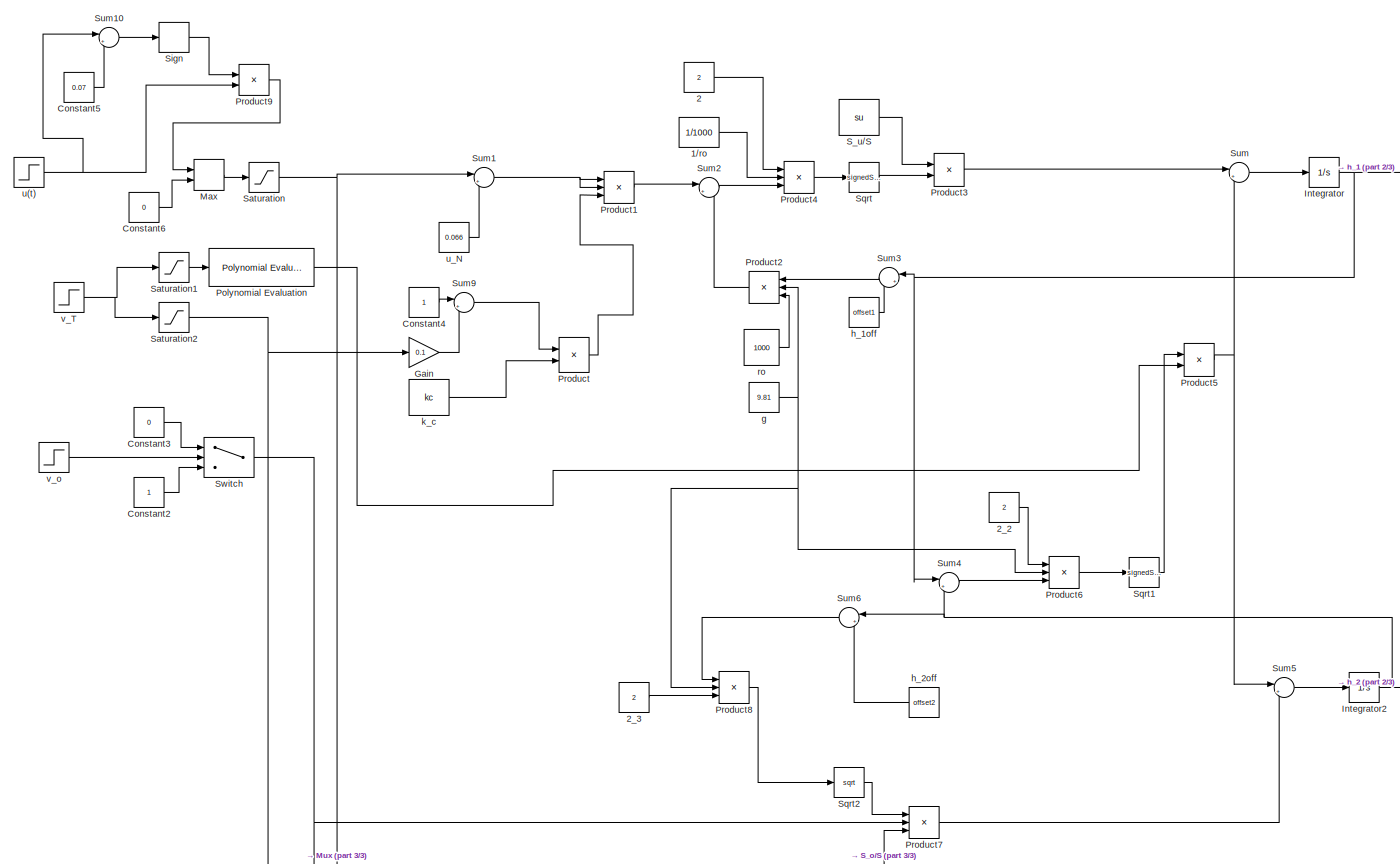
[diagram: root canvas - part 1/3, full width, middle band]
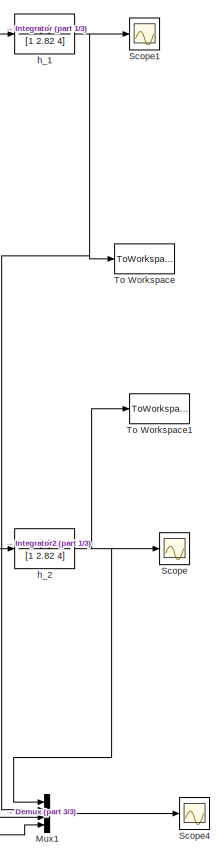
[diagram: root canvas - part 2/3, middle right region]
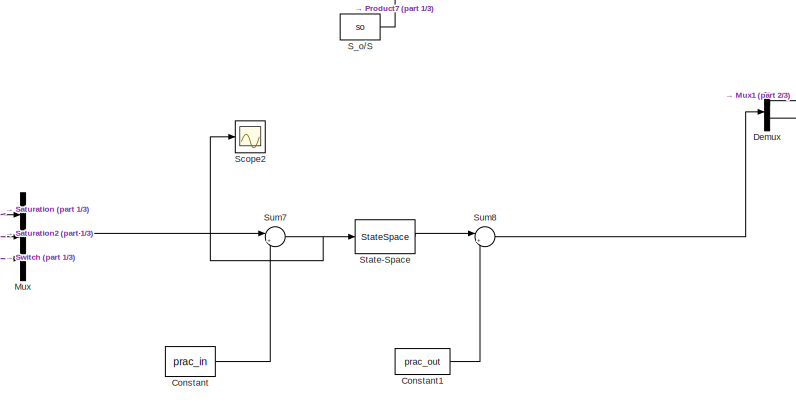
[diagram: root canvas - part 3/3, bottom center region]
MODEL slx_21967d08559a
KIND model
CONFIG AbsTol = auto
CONFIG EnableMultiTasking = off
CONFIG FixedStep = auto
CONFIG MaxStep = auto
CONFIG MinStep = auto
CONFIG RelTol = 1e-3
CONFIG SampleTimeConstraint = Unconstrained
CONFIG Solver = VariableStepAuto
CONFIG SolverName = VariableStepAuto
CONFIG StartTime = 0.0
CONFIG StopTime = 300
BLOCK [Constant] 1//ro 
  Value = 1/1000
BLOCK [Constant] 2 
  Value = 2
BLOCK [Constant] 2_2 
  Value = 2
BLOCK [Constant] 2_3 
  Value = 2
BLOCK [Constant] Constant
  Value = prac_in
BLOCK [Constant] Constant1
  Value = prac_out
BLOCK [Constant] Constant2
BLOCK [Constant] Constant3
  Value = 0
BLOCK [Constant] Constant4
BLOCK [Constant] Constant5
  Value = 0.07
BLOCK [Constant] Constant6
  Value = 0
BLOCK [Demux] Demux
  DisplayOption = bar
  Outputs = 2
  Ports = [1, 2]
BLOCK [Gain] Gain
  Gain = 0.1
  OutDataTypeStr = Inherit: Inherit via internal rule
  ParamDataTypeStr = Inherit: Inherit via internal rule
  SaturateOnIntegerOverflow = off
BLOCK [Integrator] Integrator
  InitialCondition = 0.03
  LimitOutput = on
  LowerSaturationLimit = 0.03
  Ports = [1, 1]
  UpperSaturationLimit = 1
BLOCK [Integrator] Integrator2
  InitialCondition = 0.07
  LimitOutput = on
  LowerSaturationLimit = 0.07
  Ports = [1, 1]
  UpperSaturationLimit = 1
BLOCK [MinMax] Max
  Function = max
  InputSameDT = off
  Inputs = 2
  Ports = [2, 1]
  SaturateOnIntegerOverflow = off
BLOCK [Mux] Mux
  DisplayOption = bar
  Inputs = 3
  Ports = [3, 1]
BLOCK [Mux] Mux1
  DisplayOption = bar
  Ports = [4, 1]
BLOCK [Reference] Polynomial Evaluation  REF=dsppolyfun/Polynomial
Evaluation
  Ports = [1, 1]
  SourceBlock = dsppolyfun/Polynomial\nEvaluation
  SourceProductBaseCode = DS
  SourceProductName = DSP System Toolbox
  SourceType = Polynomial Evaluation
BLOCK [Product] Product
  InputSameDT = off
  OutDataTypeStr = Inherit: Inherit via internal rule
  Ports = [2, 1]
  RndMeth = Floor
  SaturateOnIntegerOverflow = off
BLOCK [Product] Product1
  InputSameDT = off
  Inputs = 3
  OutDataTypeStr = Inherit: Inherit via internal rule
  Ports = [3, 1]
  RndMeth = Floor
  SaturateOnIntegerOverflow = off
BLOCK [Product] Product2
  InputSameDT = off
  Inputs = 3
  OutDataTypeStr = Inherit: Inherit via internal rule
  Ports = [3, 1]
  RndMeth = Floor
  SaturateOnIntegerOverflow = off
BLOCK [Product] Product3
  InputSameDT = off
  OutDataTypeStr = Inherit: Inherit via internal rule
  Ports = [2, 1]
  RndMeth = Floor
  SaturateOnIntegerOverflow = off
BLOCK [Product] Product4
  InputSameDT = off
  Inputs = 3
  OutDataTypeStr = Inherit: Inherit via internal rule
  Ports = [3, 1]
  RndMeth = Floor
  SaturateOnIntegerOverflow = off
BLOCK [Product] Product5
  InputSameDT = off
  OutDataTypeStr = Inherit: Inherit via internal rule
  Ports = [2, 1]
  RndMeth = Floor
  SaturateOnIntegerOverflow = off
BLOCK [Product] Product6
  InputSameDT = off
  Inputs = 3
  OutDataTypeStr = Inherit: Inherit via internal rule
  Ports = [3, 1]
  RndMeth = Floor
  SaturateOnIntegerOverflow = off
BLOCK [Product] Product7
  InputSameDT = off
  Inputs = 3
  OutDataTypeStr = Inherit: Inherit via internal rule
  Ports = [3, 1]
  RndMeth = Floor
  SaturateOnIntegerOverflow = off
BLOCK [Product] Product8
  InputSameDT = off
  Inputs = 3
  OutDataTypeStr = Inherit: Inherit via internal rule
  Ports = [3, 1]
  RndMeth = Floor
  SaturateOnIntegerOverflow = off
BLOCK [Product] Product9
  InputSameDT = off
  OutDataTypeStr = Inherit: Inherit via internal rule
  Ports = [2, 1]
  RndMeth = Floor
  SaturateOnIntegerOverflow = off
BLOCK [Constant] S_o//S
  Value = so
BLOCK [Constant] S_u//S 
  Value = su
BLOCK [Saturate] Saturation
  InputPortMap = u0
  LowerLimit = 0
  Ports = [1, 1]
  UpperLimit = 1
BLOCK [Saturate] Saturation1
  InputPortMap = u0
  LowerLimit = 0.31
  Ports = [1, 1]
  UpperLimit = 1
BLOCK [Saturate] Saturation2
  InputPortMap = u0
  LowerLimit = 0
  Ports = [1, 1]
  UpperLimit = 1
BLOCK [Scope] Scope
  NumInputPorts = 1
  Ports = [1]
  ScopeSpecificationString = Simulink.scopes.TimeScopeBlockCfg('CurrentConfiguration', extmgr.ConfigurationSet(extmgr.Configuration('Core','General UI',true),extmgr.Configuration('Core','Source UI',true),extmgr.Configuration('Sources','WiredSimulink',true,'DataLoggingVariableName','ScopeData1'),extmgr.Configuration('Visuals','Time Domain',true,'SerializedDisplays',{struct('MinYLimReal','-0.07874','MaxYLimReal','0.70865','YLab...<+1388ch>
BLOCK [Scope] Scope1
  NumInputPorts = 1
  Ports = [1]
  ScopeSpecificationString = Simulink.scopes.TimeScopeBlockCfg('CurrentConfiguration', extmgr.ConfigurationSet(extmgr.Configuration('Core','General UI',true),extmgr.Configuration('Core','Source UI',true),extmgr.Configuration('Sources','WiredSimulink',true),extmgr.Configuration('Visuals','Time Domain',true,'SerializedDisplays',{struct('MinYLimReal','-0.07875','MaxYLimReal','0.70879','YLabelReal','','MinYLimMag','0.00000','MaxY...<+1381ch>
BLOCK [Scope] Scope2
  NumInputPorts = 1
  Ports = [1]
  ScopeSpecificationString = Simulink.scopes.TimeScopeBlockCfg('CurrentConfiguration', extmgr.ConfigurationSet(extmgr.Configuration('Core','General UI',true),extmgr.Configuration('Core','Source UI',true),extmgr.Configuration('Sources','WiredSimulink',true,'DataLoggingVariableName','ScopeData1'),extmgr.Configuration('Visuals','Time Domain',true,'SerializedDisplays',{struct('MinYLimReal','-1.125','MaxYLimReal','0.125','YLabelRe...<+1444ch>
BLOCK [Scope] Scope4
  NumInputPorts = 1
  Ports = [1]
  ScopeSpecificationString = Simulink.scopes.TimeScopeBlockCfg('CurrentConfiguration', extmgr.ConfigurationSet(extmgr.Configuration('Core','General UI',true),extmgr.Configuration('Core','Source UI',true),extmgr.Configuration('Sources','WiredSimulink',true,'DataLoggingVariableName','ScopeData3'),extmgr.Configuration('Visuals','Time Domain',true,'SerializedDisplays',{struct('MinYLimReal','0.49724','MaxYLimReal','0.64568','YLabe...<+1844ch>
BLOCK [Signum] Sign
BLOCK [Sqrt] Sqrt
  Operator = signedSqrt
BLOCK [Sqrt] Sqrt1
  Operator = signedSqrt
BLOCK [Sqrt] Sqrt2
BLOCK [StateSpace] State-Space
  A = A
  B = B
  C = C
  D = D
  InitialCondition = 0
  Ports = [1, 1]
BLOCK [Sum] Sum
  IconShape = round
  InputSameDT = off
  Inputs = |+-
  OutDataTypeStr = Inherit: Inherit via internal rule
  Ports = [2, 1]
  SaturateOnIntegerOverflow = off
BLOCK [Sum] Sum1
  IconShape = round
  InputSameDT = off
  Inputs = |+-
  OutDataTypeStr = Inherit: Inherit via internal rule
  Ports = [2, 1]
  SaturateOnIntegerOverflow = off
BLOCK [Sum] Sum10
  IconShape = round
  InputSameDT = off
  Inputs = |+-
  OutDataTypeStr = Inherit: Inherit via internal rule
  Ports = [2, 1]
  SaturateOnIntegerOverflow = off
BLOCK [Sum] Sum2
  IconShape = round
  InputSameDT = off
  Inputs = |+-
  OutDataTypeStr = Inherit: Inherit via internal rule
  Ports = [2, 1]
  SaturateOnIntegerOverflow = off
BLOCK [Sum] Sum3
  IconShape = round
  InputSameDT = off
  Inputs = |++
  OutDataTypeStr = Inherit: Inherit via internal rule
  Ports = [2, 1]
  SaturateOnIntegerOverflow = off
BLOCK [Sum] Sum4
  IconShape = round
  InputSameDT = off
  Inputs = |+-
  OutDataTypeStr = Inherit: Inherit via internal rule
  Ports = [2, 1]
  SaturateOnIntegerOverflow = off
BLOCK [Sum] Sum5
  IconShape = round
  InputSameDT = off
  Inputs = |+-
  OutDataTypeStr = Inherit: Inherit via internal rule
  Ports = [2, 1]
  SaturateOnIntegerOverflow = off
BLOCK [Sum] Sum6
  IconShape = round
  InputSameDT = off
  Inputs = |++
  OutDataTypeStr = Inherit: Inherit via internal rule
  Ports = [2, 1]
  SaturateOnIntegerOverflow = off
BLOCK [Sum] Sum7
  IconShape = round
  InputSameDT = off
  Inputs = |+-
  OutDataTypeStr = Inherit: Inherit via internal rule
  Ports = [2, 1]
  SaturateOnIntegerOverflow = off
BLOCK [Sum] Sum8
  IconShape = round
  InputSameDT = off
  Inputs = |++
  OutDataTypeStr = Inherit: Inherit via internal rule
  Ports = [2, 1]
  SaturateOnIntegerOverflow = off
BLOCK [Sum] Sum9
  IconShape = round
  InputSameDT = off
  Inputs = |+-
  OutDataTypeStr = Inherit: Inherit via internal rule
  Ports = [2, 1]
  SaturateOnIntegerOverflow = off
BLOCK [Switch] Switch
  InputSameDT = off
  SaturateOnIntegerOverflow = off
  Threshold = 1
BLOCK [ToWorkspace] To Workspace
  FixptAsFi = on
  MaxDataPoints = inf
  Ports = [1]
  SampleTime = -1
  Save2DSignal = 3-D array (concatenate along third dimension)
  SaveFormat = Timeseries
  VariableName = h1_sim
BLOCK [ToWorkspace] To Workspace1
  FixptAsFi = on
  MaxDataPoints = inf
  Ports = [1]
  SampleTime = -1
  Save2DSignal = 3-D array (concatenate along third dimension)
  SaveFormat = Timeseries
  VariableName = h2_sim
BLOCK [Constant] g
  Value = 9.81
BLOCK [TransferFcn] h_1 
  Denominator = [1 2.82 4]
  Numerator = [4]
BLOCK [Constant] h_1off
  Value = offset1
BLOCK [TransferFcn] h_2
  Denominator = [1 2.82 4]
  Numerator = [4]
BLOCK [Constant] h_2off
  Value = offset2
BLOCK [Constant] k_c
  Value = kc
BLOCK [Constant] ro
  Value = 1000
BLOCK [Step] u(t)
  After = 0.6
  Before = 0.55
  SampleTime = 0
  Time = 100
BLOCK [Constant] u_N
  Value = 0.066
BLOCK [Step] v_T
  After = 0.5
  SampleTime = 0
  Time = 0
BLOCK [Step] v_o
  SampleTime = 0
  Time = 0
LINE 1//ro :1 -> Product4:2
LINE 2 :1 -> Product4:1
LINE 2_2 :1 -> Product6:1
LINE 2_3 :1 -> Product8:3
LINE Constant1:1 -> Sum8:2
LINE Constant2:1 -> Switch:3
LINE Constant3:1 -> Switch:1
LINE Constant4:1 -> Sum9:1
LINE Constant5:1 -> Sum10:2
LINE Constant6:1 -> Max:2
LINE Constant:1 -> Sum7:2
LINE Demux:1 -> Mux1:3
LINE Demux:2 -> Mux1:4
LINE Gain:1 -> Sum9:2
NET Integrator2:1 -> Sum4:2, Sum6:1, h_2:1
NET Integrator:1 -> Sum3:1, Sum4:1, h_1 :1
LINE Max:1 -> Saturation:1
LINE Mux1:1 -> Scope4:1
LINE Mux:1 -> Sum7:1
LINE Polynomial Evaluation:1 -> Product5:2
LINE Product1:1 -> Sum2:1
LINE Product2:1 -> Sum2:2
LINE Product3:1 -> Sum:1
LINE Product4:1 -> Sqrt:1
NET Product5:1 -> Sum5:1, Sum:2
LINE Product6:1 -> Sqrt1:1
LINE Product7:1 -> Sum5:2
LINE Product8:1 -> Sqrt2:1
LINE Product9:1 -> Max:1
LINE Product:1 -> Product1:3
LINE S_o//S:1 -> Product7:3
LINE S_u//S :1 -> Product3:1
LINE Saturation1:1 -> Polynomial Evaluation:1
NET Saturation2:1 -> Gain:1, Mux:2
NET Saturation:1 -> Mux:1, Sum1:1
LINE Sign:1 -> Product9:1
LINE Sqrt1:1 -> Product5:1
LINE Sqrt2:1 -> Product7:1
LINE Sqrt:1 -> Product3:2
LINE State-Space:1 -> Sum8:1
LINE Sum10:1 -> Sign:1
NET Sum1:1 -> Product1:1, Product1:2
LINE Sum2:1 -> Product4:3
LINE Sum3:1 -> Product2:1
LINE Sum4:1 -> Product6:3
LINE Sum5:1 -> Integrator2:1
LINE Sum6:1 -> Product8:1
NET Sum7:1 -> Scope2:1, State-Space:1
LINE Sum8:1 -> Demux:1
LINE Sum9:1 -> Product:1
LINE Sum:1 -> Integrator:1
NET Switch:1 -> Mux:3, Product7:2
NET g:1 -> Product2:2, Product6:2, Product8:2
NET h_1 :1 -> Mux1:2, Scope1:1, To Workspace:1
LINE h_1off:1 -> Sum3:2
NET h_2:1 -> Mux1:1, Scope:1, To Workspace1:1
LINE h_2off:1 -> Sum6:2
LINE k_c:1 -> Product:2
LINE ro:1 -> Product2:3
NET u(t):1 -> Product9:2, Sum10:1
LINE u_N:1 -> Sum1:2
NET v_T:1 -> Saturation1:1, Saturation2:1
LINE v_o:1 -> Switch:2
note: NET lines group one-source signal fan-out (src -> all destinations, sorted); 1:1 wires keep LINE
